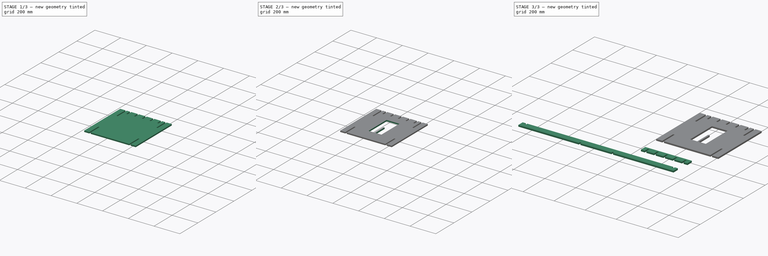
[diagram: build sequence overview — one tinted view per stage of 3, left to right]
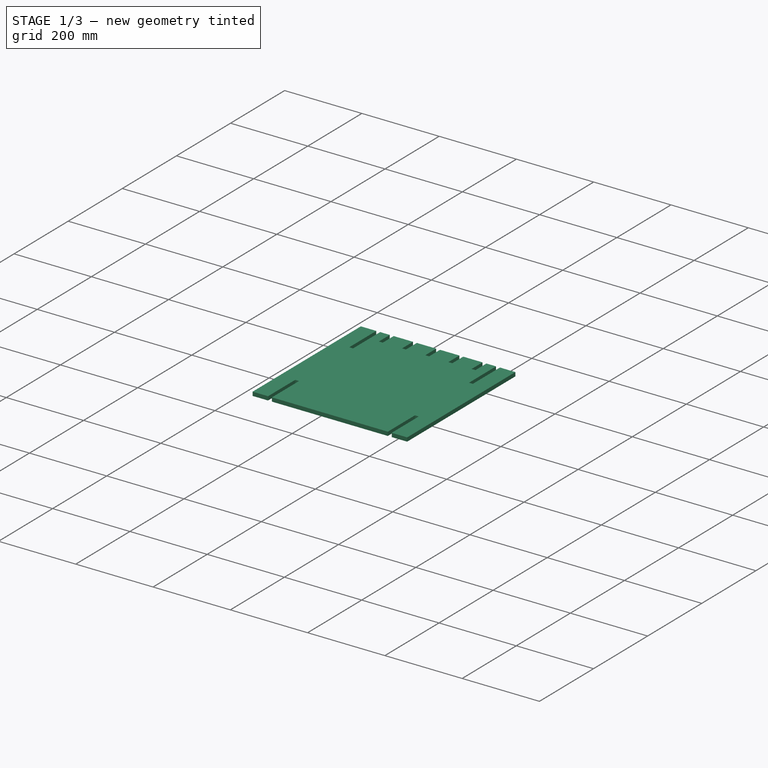
[diagram: stage 1 of 3 — iso view after this stage's code; geometry added in this stage tinted green]
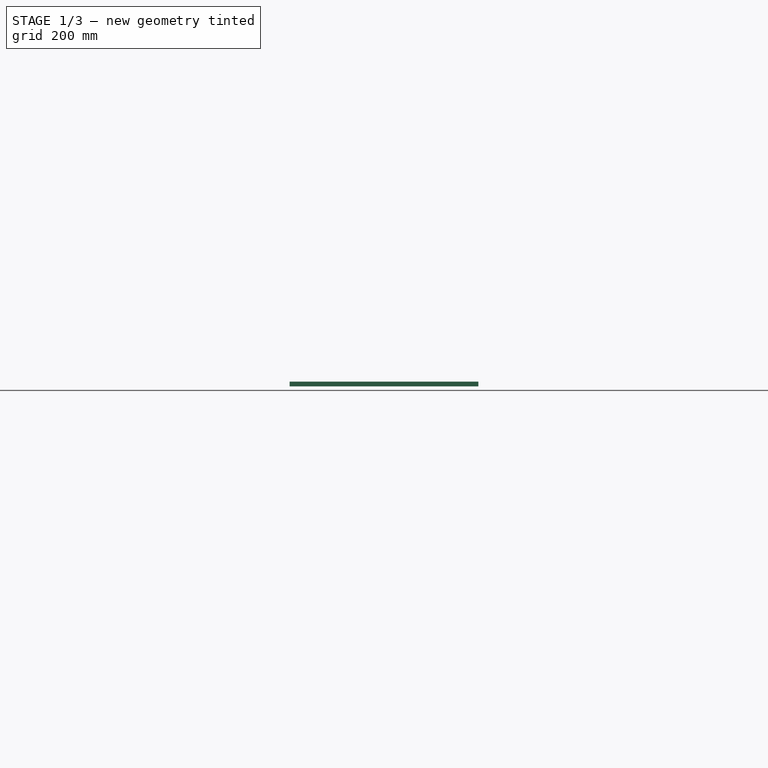
[diagram: stage 1 of 3 — front view after this stage's code; geometry added in this stage tinted green]
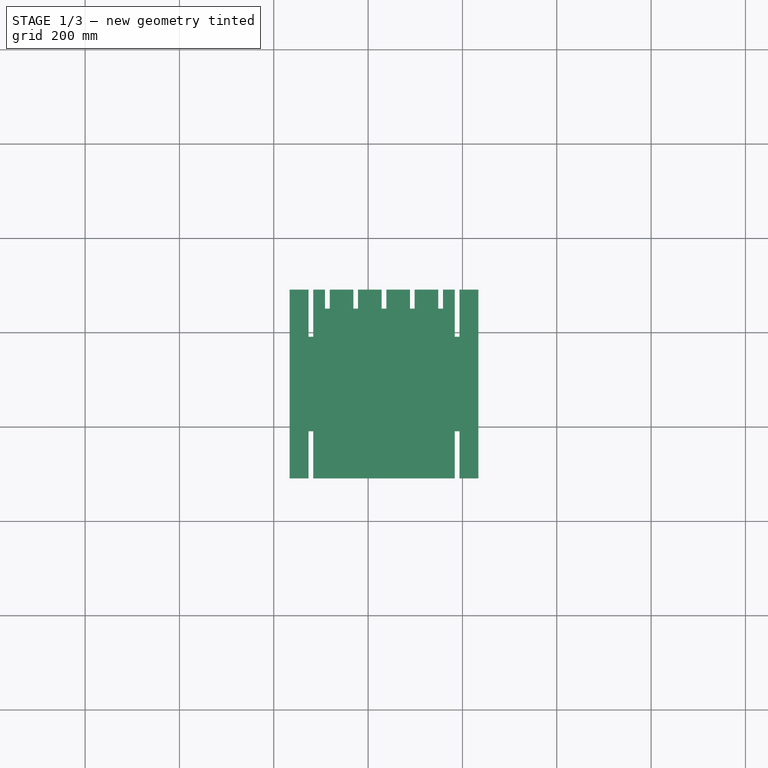
[diagram: stage 1 of 3 — top view after this stage's code; geometry added in this stage tinted green]
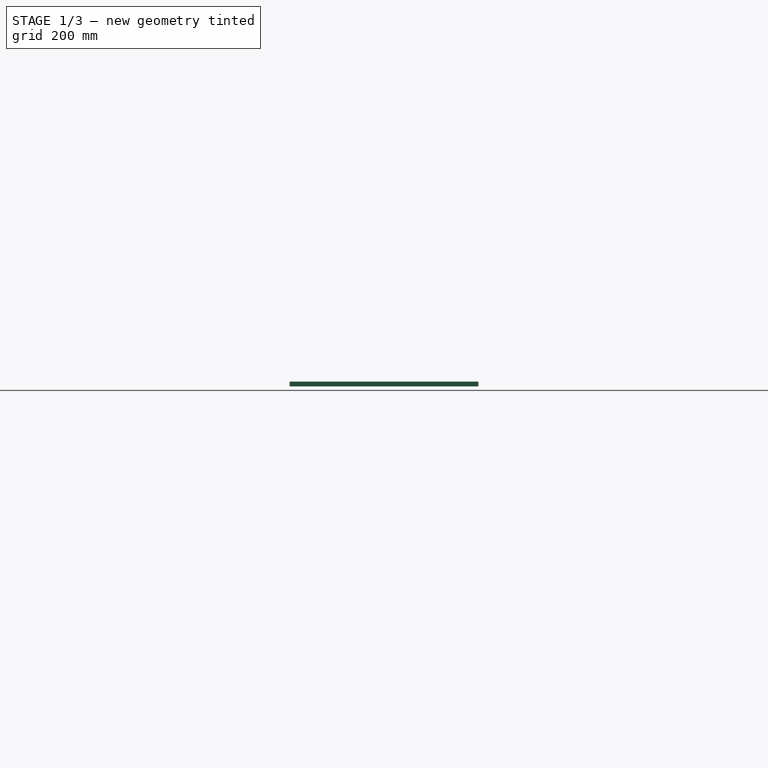
[diagram: stage 1 of 3 — right view after this stage's code; geometry added in this stage tinted green]
FCSTD DOCUMENT  (FreeCAD 0.15R4477 (Git))
Label: moduloMobile3
License: CC-BY 3.0
LicenseURL: http://creativecommons.org/licenses/by/3.0/
objects: Sketcher::SketchObject×5, Part::Part2DObjectPython×3, Part::Extrusion×3, PartDesign::Pad×1, PartDesign::Pocket×1
note: 15 computed .brp shape members not serialized (recipe doc carries the construction recipe); baked Part::Feature solids carry a one-line shape summary decoded from their .brp

FEATURE [Sketcher::SketchObject] Sketch
  sketch-geometry (12):
    g0: LineSegment StartX=0 StartY=600 StartZ=0 EndX=45 EndY=600 EndZ=0
    g1: LineSegment StartX=45 StartY=600 StartZ=0 EndX=45 EndY=500 EndZ=0
    g2: LineSegment StartX=45 StartY=500 StartZ=0 EndX=55 EndY=500 EndZ=0
    g3: LineSegment StartX=55 StartY=500 StartZ=0 EndX=55 EndY=600 EndZ=0
    g4: LineSegment StartX=55 StartY=600 StartZ=0 EndX=100 EndY=600 EndZ=0
    g5: LineSegment StartX=100 StartY=600 StartZ=0 EndX=100 EndY=0 EndZ=0
    g6: LineSegment StartX=100 StartY=0 StartZ=0 EndX=55 EndY=0 EndZ=0
    g7: LineSegment StartX=55 StartY=0 StartZ=0 EndX=55 EndY=100 EndZ=0
    g8: LineSegment StartX=55 StartY=100 StartZ=0 EndX=45 EndY=100 EndZ=0
    g9: LineSegment StartX=45 StartY=100 StartZ=0 EndX=45 EndY=0 EndZ=0
    g10: LineSegment StartX=45 StartY=0 StartZ=0 EndX=0 EndY=0 EndZ=0
    g11: LineSegment StartX=0 StartY=0 StartZ=0 EndX=0 EndY=600 EndZ=0
  constraints (36):
    c: Horizontal(g0)
    c: Coincident(g0,g1)
    c: Vertical(g1)
    c: Coincident(g1,g2)
    c: Horizontal(g2)
    c: Coincident(g2,g3)
    c: Vertical(g3)
    c: Coincident(g3,g4)
    c: Horizontal(g4)
    c: Coincident(g4,g5)
    c: Vertical(g5)
    c: Coincident(g5,g6)
    c: Horizontal(g6)
    c: Coincident(g6,g7)
    c: Vertical(g7)
    c: Coincident(g7,g8)
    c: Horizontal(g8)
    c: Coincident(g8,g9)
    c: Vertical(g9)
    c: Coincident(g9,g10)
    c: Horizontal(g10)
    c: Coincident(g10,g11)
    c: Coincident(g11,g0)
    c: Vertical(g11)
    c: Equal(g2,g8)
    c: Equal(g0,g4)
    c: Equal(g4,g6)
    c: Equal(g6,g10)
    c: Equal(g1,g9)
    c: Equal(g11,g5)
    c: DistanceX(g2) = 10
    c: DistanceX(g0) = 45
    c: DistanceY(g11) = 600
    c: DistanceY(g1) = -100
    c: DistanceY(g0,g4) = 0
    c: Coincident(g10,g-1)
FEATURE [PartDesign::Pad] Pad  label="PadX4"
  Length = 10
  Length2 = 10
  Sketch = -> Sketch
  Type = 0
FEATURE [Sketcher::SketchObject] Sketch002
  ExternalGeometry = -> [Pad]
  Placement = pos=(0,0,10) rot=(0,0,1;0rad)
  Support = -> Pad [Face14]
  sketch-geometry (40):
    g0: LineSegment StartX=433.718 StartY=91.1713 StartZ=0 EndX=433.718 EndY=491.171 EndZ=0
    g1: LineSegment StartX=433.718 StartY=491.171 StartZ=0 EndX=473.718 EndY=491.171 EndZ=0
    g2: LineSegment StartX=473.718 StartY=491.171 StartZ=0 EndX=473.718 EndY=391.171 EndZ=0
    g3: LineSegment StartX=473.718 StartY=391.171 StartZ=0 EndX=483.718 EndY=391.171 EndZ=0
    g4: LineSegment StartX=483.718 StartY=391.171 StartZ=0 EndX=483.718 EndY=491.171 EndZ=0
    g5: LineSegment StartX=483.718 StartY=491.171 StartZ=0 EndX=508.718 EndY=491.171 EndZ=0
    g6: LineSegment StartX=508.718 StartY=491.171 StartZ=0 EndX=508.718 EndY=450.859 EndZ=0
    g7: LineSegment StartX=508.718 StartY=450.859 StartZ=0 EndX=518.718 EndY=450.859 EndZ=0
    g8: LineSegment StartX=518.718 StartY=450.859 StartZ=0 EndX=518.718 EndY=491.171 EndZ=0
    g9: LineSegment StartX=518.718 StartY=491.171 StartZ=0 EndX=568.718 EndY=491.171 EndZ=0
    g10: LineSegment StartX=568.718 StartY=491.171 StartZ=0 EndX=568.718 EndY=450.859 EndZ=0
    g11: LineSegment StartX=568.718 StartY=450.859 StartZ=0 EndX=578.718 EndY=450.859 EndZ=0
    g12: LineSegment StartX=578.718 StartY=450.859 StartZ=0 EndX=578.718 EndY=491.171 EndZ=0
    g13: LineSegment StartX=578.718 StartY=491.171 StartZ=0 EndX=628.718 EndY=491.171 EndZ=0
    g14: LineSegment StartX=628.718 StartY=491.171 StartZ=0 EndX=628.718 EndY=450.859 EndZ=0
    g15: LineSegment StartX=628.718 StartY=450.859 StartZ=0 EndX=638.718 EndY=450.859 EndZ=0
    g16: LineSegment StartX=638.718 StartY=450.859 StartZ=0 EndX=638.718 EndY=491.171 EndZ=0
    g17: LineSegment StartX=638.718 StartY=491.171 StartZ=0 EndX=688.718 EndY=491.171 EndZ=0
    g18: LineSegment StartX=688.718 StartY=491.171 StartZ=0 EndX=688.718 EndY=450.859 EndZ=0
    g19: LineSegment StartX=688.718 StartY=450.859 StartZ=0 EndX=698.718 EndY=450.859 EndZ=0
    g20: LineSegment StartX=698.718 StartY=450.859 StartZ=0 EndX=698.718 EndY=491.171 EndZ=0
    g21: LineSegment StartX=698.718 StartY=491.171 StartZ=0 EndX=748.718 EndY=491.171 EndZ=0
    g22: LineSegment StartX=748.718 StartY=491.171 StartZ=0 EndX=748.718 EndY=450.859 EndZ=0
    g23: LineSegment StartX=748.718 StartY=450.859 StartZ=0 EndX=758.718 EndY=450.859 EndZ=0
    g24: LineSegment StartX=758.718 StartY=450.859 StartZ=0 EndX=758.718 EndY=491.171 EndZ=0
    g25: LineSegment StartX=758.718 StartY=491.171 StartZ=0 EndX=783.718 EndY=491.171 EndZ=0
    g26: LineSegment StartX=783.718 StartY=491.171 StartZ=0 EndX=783.718 EndY=391.171 EndZ=0
    g27: LineSegment StartX=783.718 StartY=391.171 StartZ=0 EndX=793.718 EndY=391.171 EndZ=0
    g28: LineSegment StartX=793.718 StartY=391.171 StartZ=0 EndX=793.718 EndY=491.171 EndZ=0
    g29: LineSegment StartX=793.718 StartY=491.171 StartZ=0 EndX=833.718 EndY=491.171 EndZ=0
    g30: LineSegment StartX=833.718 StartY=491.171 StartZ=0 EndX=833.718 EndY=91.1713 EndZ=0
    g31: LineSegment StartX=833.718 StartY=91.1713 StartZ=0 EndX=793.718 EndY=91.1713 EndZ=0
    g32: LineSegment StartX=793.718 StartY=91.1713 StartZ=0 EndX=793.718 EndY=191.171 EndZ=0
    g33: LineSegment StartX=793.718 StartY=191.171 StartZ=0 EndX=783.718 EndY=191.171 EndZ=0
    g34: LineSegment StartX=783.718 StartY=191.171 StartZ=0 EndX=783.718 EndY=91.1713 EndZ=0
    g35: LineSegment StartX=783.718 StartY=91.1713 StartZ=0 EndX=483.718 EndY=91.1713 EndZ=0
    g36: LineSegment StartX=483.718 StartY=91.1713 StartZ=0 EndX=483.718 EndY=191.171 EndZ=0
    g37: LineSegment StartX=483.718 StartY=191.171 StartZ=0 EndX=473.718 EndY=191.171 EndZ=0
    g38: LineSegment StartX=473.718 StartY=191.171 StartZ=0 EndX=473.718 EndY=91.1713 EndZ=0
    g39: LineSegment StartX=473.718 StartY=91.1713 StartZ=0 EndX=433.718 EndY=91.1713 EndZ=0
  constraints (117):
    c: Vertical(g0)
    c: Coincident(g0,g1)
    c: Horizontal(g1)
    c: Coincident(g1,g2)
    c: Vertical(g2)
    c: Coincident(g2,g3)
    c: Coincident(g3,g4)
    c: Coincident(g4,g5)
    c: Horizontal(g5)
    c: Coincident(g5,g6)
    c: Vertical(g6)
    c: Coincident(g6,g7)
    c: Coincident(g7,g8)
    c: Vertical(g8)
    c: Coincident(g8,g9)
    c: Horizontal(g9)
    c: Coincident(g9,g10)
    c: Vertical(g10)
    c: Coincident(g10,g11)
    c: Horizontal(g11)
    c: Coincident(g11,g12)
    c: Vertical(g12)
    c: Coincident(g12,g13)
    c: Horizontal(g13)
    c: Coincident(g13,g14)
    c: Vertical(g14)
    c: Coincident(g14,g15)
    c: Coincident(g15,g16)
    c: Coincident(g16,g17)
    c: Horizontal(g17)
    c: Coincident(g17,g18)
    c: Vertical(g18)
    c: Coincident(g18,g19)
    c: Horizontal(g19)
    c: Coincident(g19,g20)
    c: Vertical(g20)
    c: Coincident(g20,g21)
    c: Horizontal(g21)
    c: Coincident(g21,g22)
    c: Vertical(g22)
    c: Coincident(g22,g23)
    c: Horizontal(g23)
    c: Coincident(g23,g24)
    c: Vertical(g24)
    c: Coincident(g24,g25)
    c: Horizontal(g25)
    c: Coincident(g25,g26)
    c: Vertical(g26)
    c: Coincident(g26,g27)
    c: Horizontal(g27)
    c: Coincident(g27,g28)
    c: Vertical(g28)
    c: Coincident(g28,g29)
    c: Horizontal(g29)
    c: Coincident(g29,g30)
    c: Vertical(g30)
    c: Coincident(g30,g31)
    c: Horizontal(g31)
    c: Coincident(g31,g32)
    c: Vertical(g32)
    c: Coincident(g32,g33)
    c: Horizontal(g33)
    c: Coincident(g33,g34)
    c: Vertical(g34)
    c: Coincident(g34,g35)
    c: Horizontal(g35)
    c: Coincident(g35,g36)
    c: Vertical(g36)
    c: Coincident(g36,g37)
    c: Coincident(g37,g38)
    c: Vertical(g38)
    c: Coincident(g38,g39)
    c: Coincident(g39,g0)
    c: Horizontal(g39)
    c: Equal(g38,g-3)
    c: Horizontal(g37)
    c: Equal(g37,g-4)
    c: Horizontal(g3)
    c: Horizontal(g7)
    c: Horizontal(g15)
    c: Equal(g38,g36)
    c: Equal(g36,g2)
    c: Equal(g2,g4)
    c: Equal(g4,g34)
    c: Equal(g34,g32)
    c: Equal(g32,g26)
    c: Equal(g26,g28)
    c: Equal(g0,g30)
    c: Vertical(g4)
    c: Equal(g37,g3)
    c: Equal(g3,g27)
    c: Equal(g27,g33)
    c: Equal(g33,g7)
    c: Equal(g7,g11)
    c: Equal(g11,g15)
    c: Equal(g15,g19)
    c: Equal(g19,g23)
    c: Equal(g5,g25)
    c: Equal(g9,g13)
    c: Equal(g13,g17)
    c: Equal(g17,g21)
    c: Equal(g6,g8)
    c: Equal(g8,g10)
    c: Equal(g10,g12)
    c: Equal(g12,g14)
    c: Equal(g14,g16)
    c: Equal(g16,g18)
    c: Equal(g18,g20)
    c: Equal(g20,g22)
    c: Equal(g22,g24)
    c: DistanceX(g0,g30) = 400
    c: DistanceY(g0,g0) = -400
    c: DistanceX(g1,g0) = -40
    c: Equal(g1,g29)
    c: Equal(g29,g31)
    c: Equal(g31,g39)
    c: DistanceX(g9) = 50
FEATURE [Part::Part2DObjectPython] DWire001  # Draft 2D object (typed FeaturePython)
  Base = -> Sketch002
  ChamferSize = 0
  Closed = true
  End = (379.172,90.8572,10)
  FilletRadius = 0
  Length = 3002.2
  MakeFace = true
  Points = (40) [(339.172,90.8572,10),(339.172,490.857,10),(379.172,490.857,10),(379.172,390.857,10),(389.172,390.857,10),(389.172,490.857,10),(454.729,490.857,10),+33 more]
  Start = (339.172,90.8572,10)
FEATURE [Part::Extrusion] Extrude001  label="ExtrudeX2"
  Base = -> DWire001
  Dir = (0,0,10)
  Solid = false
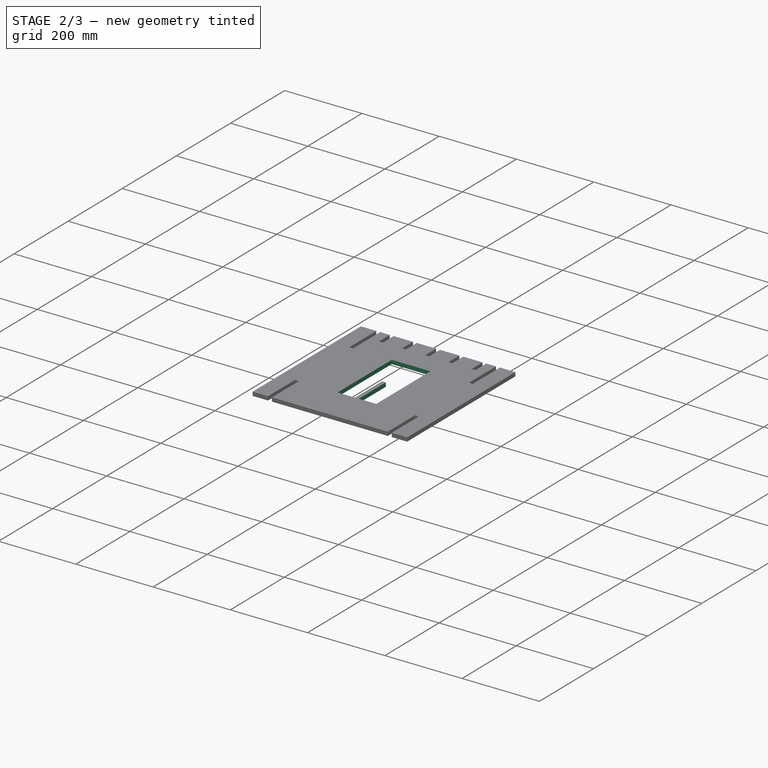
[diagram: stage 2 of 3 — iso view after this stage's code; geometry added in this stage tinted green]
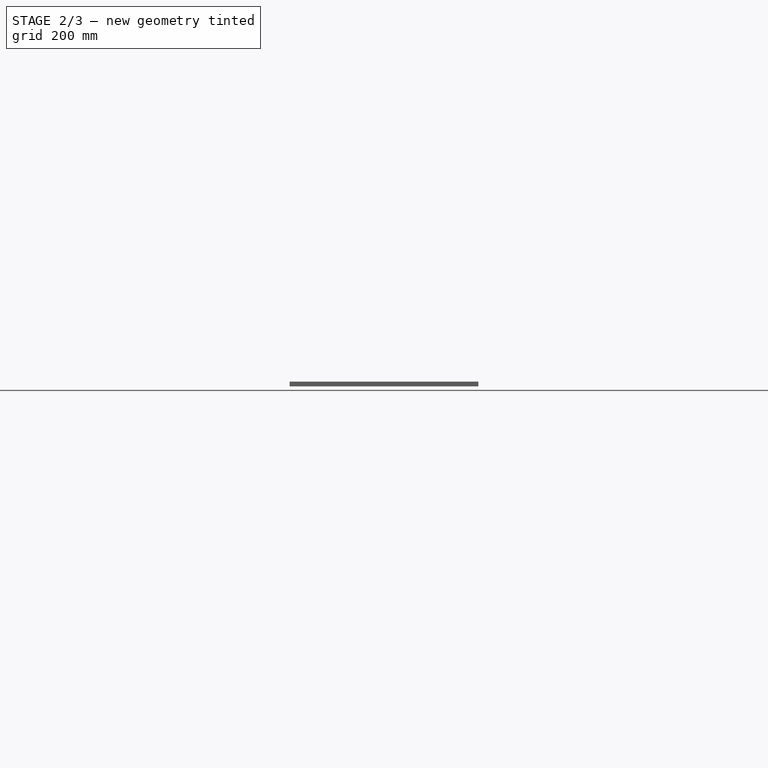
[diagram: stage 2 of 3 — front view after this stage's code; geometry added in this stage tinted green]
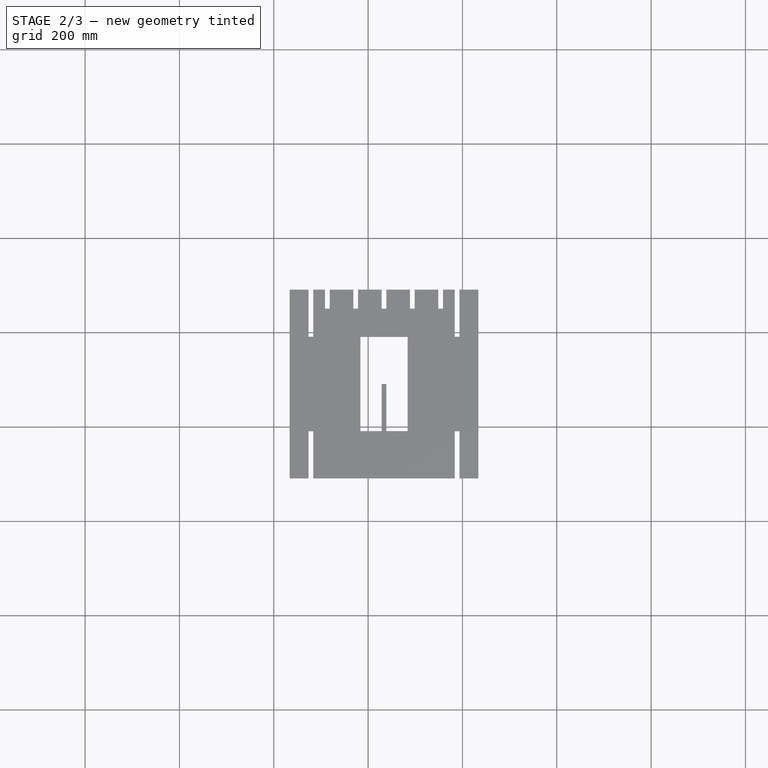
[diagram: stage 2 of 3 — top view after this stage's code; geometry added in this stage tinted green]
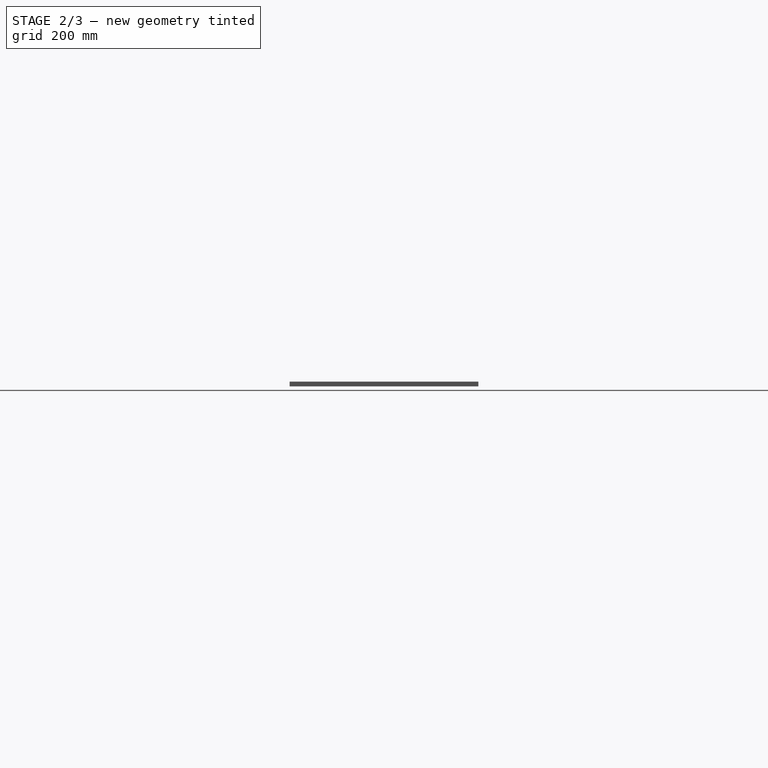
[diagram: stage 2 of 3 — right view after this stage's code; geometry added in this stage tinted green]
FEATURE [Sketcher::SketchObject] Sketch005
  ExternalGeometry = -> [Extrude001]
  Placement = pos=(0,0,20) rot=(0,0,1;0rad)
  Support = -> Extrude001 [Face42]
  sketch-geometry (17):
    g0: LineSegment StartX=683.718 StartY=391.171 StartZ=0 EndX=683.718 EndY=191.171 EndZ=0
    g1: LineSegment StartX=683.718 StartY=191.171 StartZ=0 EndX=638.718 EndY=191.171 EndZ=0
    g2: LineSegment StartX=638.718 StartY=191.171 StartZ=0 EndX=638.718 EndY=291.171 EndZ=0
    g3: LineSegment StartX=638.718 StartY=291.171 StartZ=0 EndX=628.718 EndY=291.171 EndZ=0
    g4: LineSegment StartX=628.718 StartY=291.171 StartZ=0 EndX=628.718 EndY=191.171 EndZ=0
    g5: LineSegment StartX=628.718 StartY=191.171 StartZ=0 EndX=583.718 EndY=191.171 EndZ=0
    g6: GeomPoint [constr] X=633.718 Y=391.171 Z=0
    g7: LineSegment StartX=683.718 StartY=391.171 StartZ=0 EndX=633.718 EndY=391.171 EndZ=0
    g8: LineSegment StartX=633.718 StartY=391.171 StartZ=0 EndX=583.718 EndY=391.171 EndZ=0
    g9: LineSegment StartX=583.718 StartY=191.171 StartZ=0 EndX=583.718 EndY=291.171 EndZ=0
    g10: LineSegment StartX=583.718 StartY=291.171 StartZ=0 EndX=583.718 EndY=391.171 EndZ=0
    g11: LineSegment [constr] StartX=433.718 StartY=491.171 StartZ=0 EndX=433.718 EndY=291.171 EndZ=0
    g12: LineSegment [constr] StartX=433.718 StartY=291.171 StartZ=0 EndX=433.718 EndY=91.1713 EndZ=0
    g13: LineSegment [constr] StartX=433.718 StartY=291.171 StartZ=0 EndX=489.589 EndY=291.171 EndZ=0
    g14: LineSegment [constr] StartX=483.718 StartY=191.171 StartZ=0 EndX=633.718 EndY=191.171 EndZ=0
    g15: LineSegment [constr] StartX=633.718 StartY=191.171 StartZ=0 EndX=783.718 EndY=191.171 EndZ=0
    g16: LineSegment [constr] StartX=633.718 StartY=191.171 StartZ=0 EndX=633.718 EndY=220.655 EndZ=0
  constraints (46):
    c: Vertical(g0)
    c: Coincident(g0,g1)
    c: Horizontal(g1)
    c: Coincident(g1,g2)
    c: Vertical(g2)
    c: Coincident(g2,g3)
    c: Coincident(g3,g4)
    c: Vertical(g4)
    c: Coincident(g4,g5)
    c: Horizontal(g5)
    c: Horizontal(g3)
    c: Equal(g5,g1)
    c: Equal(g3,g-3)
    c: Equal(g4,g2)
    c: Coincident(g0,g7)
    c: Coincident(g7,g6)
    c: Horizontal(g7)
    c: Coincident(g7,g8)
    c: Horizontal(g8)
    c: Equal(g8,g7)
    c: Coincident(g5,g9)
    c: Vertical(g9)
    c: Coincident(g9,g10)
    c: Vertical(g10)
    c: Coincident(g10,g8)
    c: Equal(g10,g9)
    c: Equal(g10,g9)
    c: Equal(g4,g-8)
    c: DistanceX(g8,g0) = 100
    c: DistanceY(g0) = -200
    c: Coincident(g11,g-6)
    c: Coincident(g11,g12)
    c: Coincident(g12,g-7)
    c: Equal(g12,g11)
    c: Vertical(g11)
    c: Coincident(g13,g11)
    c: Perpendicular(g11,g13)
    c: Symmetric(g8,g5,g13)
    c: Coincident(g14,g-4)
    c: Coincident(g14,g15)
    c: Coincident(g15,g-5)
    c: Equal(g14,g15)
    c: Horizontal(g14)
    c: Coincident(g16,g14)
    c: Vertical(g16)
    c: DistanceX(g6,g16) = 0
FEATURE [PartDesign::Pocket] Pocket
  Length = 10
  Sketch = -> Sketch005
  Type = 0
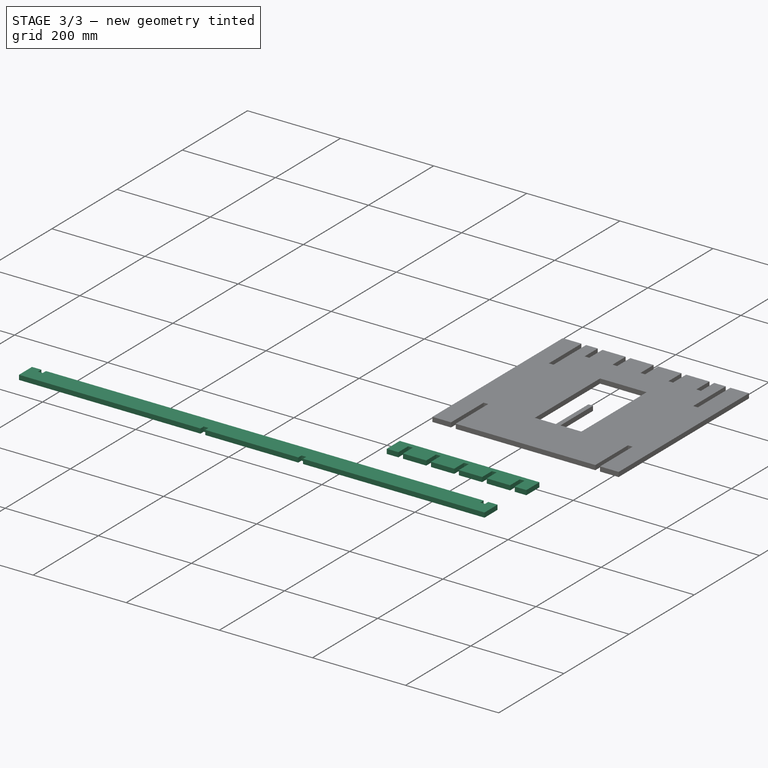
[diagram: stage 3 of 3 — iso view after this stage's code; geometry added in this stage tinted green]
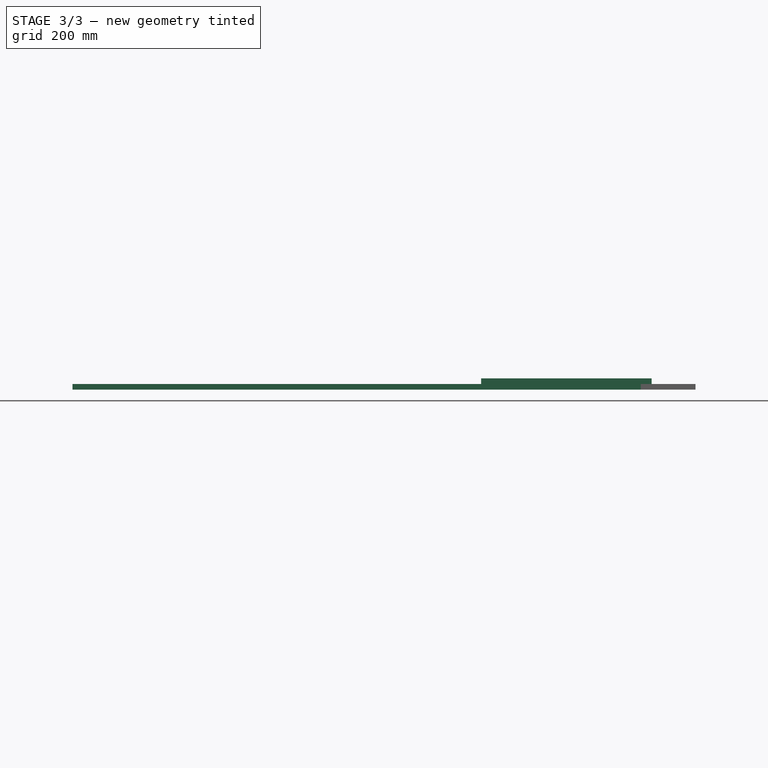
[diagram: stage 3 of 3 — front view after this stage's code; geometry added in this stage tinted green]
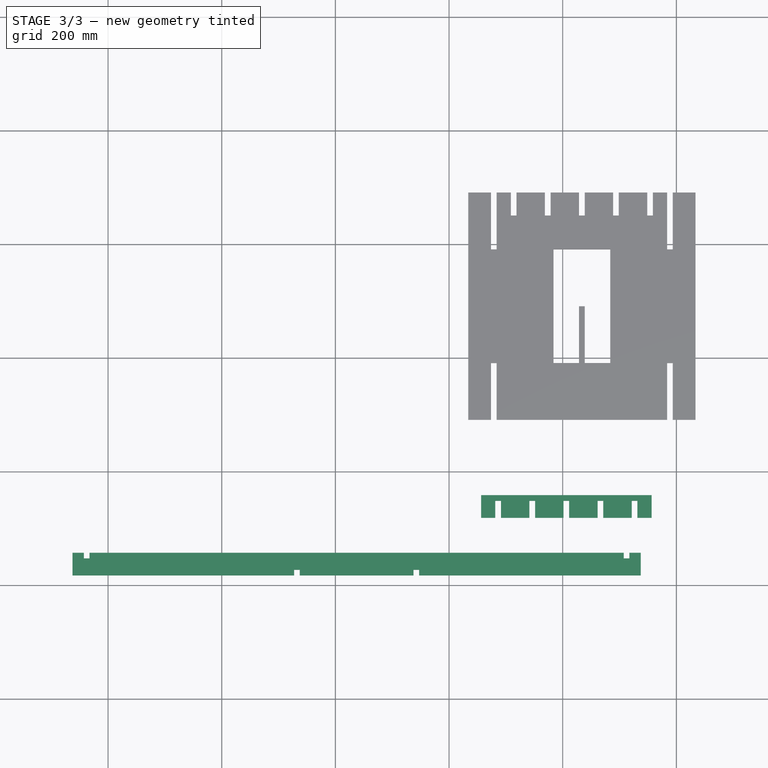
[diagram: stage 3 of 3 — top view after this stage's code; geometry added in this stage tinted green]
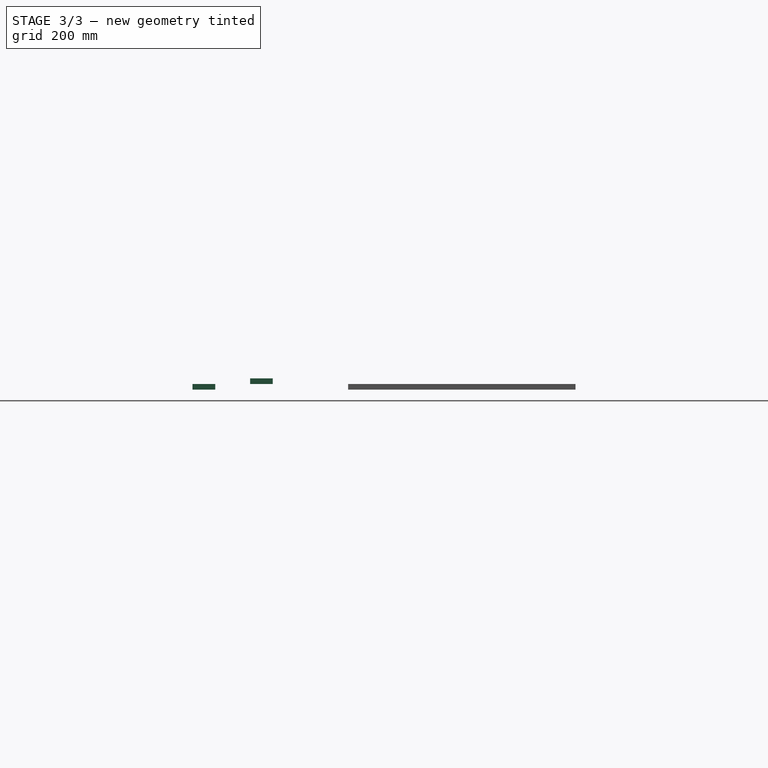
[diagram: stage 3 of 3 — right view after this stage's code; geometry added in this stage tinted green]
FEATURE [Sketcher::SketchObject] Sketch003
  ExternalGeometry = -> [Pad]
  Placement = pos=(0,0,10) rot=(0,0,1;0rad)
  Support = -> Pad [Face14]
  sketch-geometry (20):
    g0: LineSegment StartX=-262.638 StartY=-182.689 StartZ=0 EndX=-262.638 EndY=-142.689 EndZ=0
    g1: LineSegment StartX=-262.638 StartY=-142.689 StartZ=0 EndX=-242.638 EndY=-142.689 EndZ=0
    g2: LineSegment StartX=-242.638 StartY=-142.689 StartZ=0 EndX=-242.638 EndY=-152.689 EndZ=0
    g3: LineSegment StartX=-242.638 StartY=-152.689 StartZ=0 EndX=-232.638 EndY=-152.689 EndZ=0
    g4: LineSegment StartX=-232.638 StartY=-152.689 StartZ=0 EndX=-232.638 EndY=-142.689 EndZ=0
    g5: LineSegment StartX=707.362 StartY=-142.689 StartZ=0 EndX=707.362 EndY=-152.689 EndZ=0
    g6: LineSegment StartX=737.362 StartY=-142.689 StartZ=0 EndX=737.362 EndY=-182.689 EndZ=0
    g7: LineSegment StartX=707.362 StartY=-152.689 StartZ=0 EndX=717.362 EndY=-152.689 EndZ=0
    g8: LineSegment StartX=717.362 StartY=-152.689 StartZ=0 EndX=717.362 EndY=-142.689 EndZ=0
    g9: LineSegment StartX=717.362 StartY=-142.689 StartZ=0 EndX=737.362 EndY=-142.689 EndZ=0
    g10: LineSegment StartX=-262.638 StartY=-182.689 StartZ=0 EndX=127.362 EndY=-182.689 EndZ=0
    g11: LineSegment StartX=127.362 StartY=-182.689 StartZ=0 EndX=127.362 EndY=-172.689 EndZ=0
    g12: LineSegment StartX=127.362 StartY=-172.689 StartZ=0 EndX=137.362 EndY=-172.689 EndZ=0
    g13: LineSegment StartX=137.362 StartY=-172.689 StartZ=0 EndX=137.362 EndY=-182.689 EndZ=0
    g14: LineSegment StartX=137.362 StartY=-182.689 StartZ=0 EndX=337.362 EndY=-182.689 EndZ=0
    g15: LineSegment StartX=337.362 StartY=-182.689 StartZ=0 EndX=337.362 EndY=-172.689 EndZ=0
    g16: LineSegment StartX=337.362 StartY=-172.689 StartZ=0 EndX=347.362 EndY=-172.689 EndZ=0
    g17: LineSegment StartX=347.362 StartY=-172.689 StartZ=0 EndX=347.362 EndY=-182.689 EndZ=0
    g18: LineSegment StartX=347.362 StartY=-182.689 StartZ=0 EndX=737.362 EndY=-182.689 EndZ=0
    g19: LineSegment StartX=-232.638 StartY=-142.689 StartZ=0 EndX=707.362 EndY=-142.689 EndZ=0
  constraints (58):
    c: Coincident(g0,g1)
    c: Coincident(g1,g2)
    c: Vertical(g2)
    c: Coincident(g2,g3)
    c: Horizontal(g3)
    c: Coincident(g3,g4)
    c: Vertical(g6)
    c: Equal(g3,g-4)
    c: Vertical(g4)
    c: Vertical(g5)
    c: Horizontal(g1)
    c: Vertical(g0)
    c: Equal(g3,g2)
    c: Equal(g2,g4)
    c: Equal(g4,g5)
    c: DistanceX(g1) = 20
    c: DistanceY(g0) = 40
    c: DistanceX(g0,g6) = 1000
    c: Coincident(g5,g7)
    c: Horizontal(g7)
    c: Coincident(g7,g8)
    c: Vertical(g8)
    c: Coincident(g8,g9)
    c: Coincident(g9,g6)
    c: Horizontal(g9)
    c: Equal(g9,g1)
    c: Equal(g5,g7)
    c: Equal(g7,g8)
    c: Coincident(g0,g10)
    c: Horizontal(g10)
    c: Coincident(g10,g11)
    c: Vertical(g11)
    c: Coincident(g11,g12)
    c: Horizontal(g12)
    c: Coincident(g12,g13)
    c: Vertical(g13)
    c: Coincident(g13,g14)
    c: Horizontal(g14)
    c: Coincident(g14,g15)
    c: Vertical(g15)
    c: Coincident(g15,g16)
    c: Horizontal(g16)
    c: Coincident(g16,g17)
    c: Coincident(g17,g18)
    c: Horizontal(g18)
    c: Coincident(g18,g6)
    c: Equal(g0,g6)
    c: Vertical(g17)
    c: DistanceX(g14) = 200
    c: Equal(g11,g12)
    c: Equal(g12,g13)
    c: Equal(g13,g15)
    c: Equal(g15,g16)
    c: Equal(g16,g17)
    c: Equal(g11,g3)
    c: Equal(g10,g18)
    c: Coincident(g19,g4)
    c: Coincident(g19,g5)
FEATURE [Part::Part2DObjectPython] DWire002  # Draft 2D object (typed FeaturePython)
  Base = -> Sketch003
  ChamferSize = 0
  Closed = true
  End = (737.462,-185.333,10)
  FilletRadius = 0
  Length = 2160
  MakeFace = true
  Points = (20) [(-262.538,-185.333,10),(-262.538,-145.333,10),(-242.538,-145.333,10),(-242.538,-155.333,10),(-232.538,-155.333,10),(-232.538,-145.333,10),+14 more]
  Start = (-262.538,-185.333,10)
FEATURE [Part::Extrusion] Extrude002  label="ExtrudeX5"
  Base = -> DWire002
  Dir = (0,0,10)
  Solid = false
FEATURE [Sketcher::SketchObject] Sketch004
  ExternalGeometry = -> [Extrude001]
  Placement = pos=(0,0,20) rot=(0,0,1;0rad)
  Support = -> Extrude001 [Face42]
  sketch-geometry (30):
    g0: LineSegment StartX=456.393 StartY=-81.4293 StartZ=0 EndX=456.393 EndY=-41.4293 EndZ=0
    g1: LineSegment StartX=456.393 StartY=-41.4293 StartZ=0 EndX=756.393 EndY=-41.4293 EndZ=0
    g2: LineSegment StartX=756.393 StartY=-81.4293 StartZ=0 EndX=731.393 EndY=-81.4293 EndZ=0
    g3: LineSegment StartX=731.393 StartY=-81.4293 StartZ=0 EndX=731.393 EndY=-51.4293 EndZ=0
    g4: LineSegment StartX=731.393 StartY=-51.4293 StartZ=0 EndX=721.393 EndY=-51.4293 EndZ=0
    g5: LineSegment StartX=721.393 StartY=-51.4293 StartZ=0 EndX=721.393 EndY=-81.4293 EndZ=0
    g6: LineSegment StartX=721.393 StartY=-81.4293 StartZ=0 EndX=671.393 EndY=-81.4293 EndZ=0
    g7: LineSegment StartX=671.393 StartY=-81.4293 StartZ=0 EndX=671.393 EndY=-51.4293 EndZ=0
    g8: LineSegment StartX=671.393 StartY=-51.4293 StartZ=0 EndX=661.393 EndY=-51.4293 EndZ=0
    g9: LineSegment StartX=661.393 StartY=-51.4293 StartZ=0 EndX=661.393 EndY=-81.4293 EndZ=0
    g10: LineSegment StartX=661.393 StartY=-81.4293 StartZ=0 EndX=611.393 EndY=-81.4293 EndZ=0
    g11: LineSegment StartX=611.393 StartY=-81.4293 StartZ=0 EndX=611.393 EndY=-51.4293 EndZ=0
    g12: LineSegment StartX=611.393 StartY=-51.4293 StartZ=0 EndX=601.393 EndY=-51.4293 EndZ=0
    g13: LineSegment StartX=601.393 StartY=-51.4293 StartZ=0 EndX=601.393 EndY=-81.4293 EndZ=0
    g14: LineSegment StartX=601.393 StartY=-81.4293 StartZ=0 EndX=551.393 EndY=-81.4293 EndZ=0
    g15: LineSegment StartX=551.393 StartY=-81.4293 StartZ=0 EndX=551.393 EndY=-51.4293 EndZ=0
    g16: LineSegment StartX=551.393 StartY=-51.4293 StartZ=0 EndX=541.393 EndY=-51.4293 EndZ=0
    g17: LineSegment StartX=541.393 StartY=-51.4293 StartZ=0 EndX=541.393 EndY=-81.4293 EndZ=0
    g18: LineSegment StartX=541.393 StartY=-81.4293 StartZ=0 EndX=491.393 EndY=-81.4293 EndZ=0
    g19: LineSegment StartX=491.393 StartY=-81.4293 StartZ=0 EndX=491.393 EndY=-51.4293 EndZ=0
    g20: LineSegment StartX=491.393 StartY=-51.4293 StartZ=0 EndX=481.393 EndY=-51.4293 EndZ=0
    g21: LineSegment StartX=481.393 StartY=-51.4293 StartZ=0 EndX=481.393 EndY=-81.4293 EndZ=0
    g22: LineSegment StartX=481.393 StartY=-81.4293 StartZ=0 EndX=456.393 EndY=-81.4293 EndZ=0
    g23: LineSegment [constr] StartX=481.393 StartY=-81.4293 StartZ=0 EndX=491.393 EndY=-81.4293 EndZ=0
    g24: LineSegment [constr] StartX=541.393 StartY=-81.4293 StartZ=0 EndX=551.393 EndY=-81.4293 EndZ=0
    g25: LineSegment [constr] StartX=601.393 StartY=-81.4293 StartZ=0 EndX=611.393 EndY=-81.4293 EndZ=0
    g26: LineSegment [constr] StartX=671.393 StartY=-81.4293 StartZ=0 EndX=661.393 EndY=-81.4293 EndZ=0
    g27: LineSegment [constr] StartX=721.393 StartY=-81.4293 StartZ=0 EndX=731.393 EndY=-81.4293 EndZ=0
    g28: LineSegment StartX=756.393 StartY=-41.4293 StartZ=0 EndX=756.393 EndY=-51.4293 EndZ=0
    g29: LineSegment StartX=756.393 StartY=-51.4293 StartZ=0 EndX=756.393 EndY=-81.4293 EndZ=0
  constraints (88):
    c: Vertical(g0)
    c: Coincident(g0,g1)
    c: Horizontal(g1)
    c: Horizontal(g2)
    c: Coincident(g2,g3)
    c: Vertical(g3)
    c: Coincident(g3,g4)
    c: Coincident(g4,g5)
    c: Vertical(g5)
    c: Coincident(g5,g6)
    c: Coincident(g6,g7)
    c: Coincident(g7,g8)
    c: Coincident(g8,g9)
    c: Coincident(g9,g10)
    c: Horizontal(g10)
    c: Coincident(g10,g11)
    c: Coincident(g11,g12)
    c: Horizontal(g12)
    c: Coincident(g12,g13)
    c: Vertical(g13)
    c: Coincident(g13,g14)
    c: Horizontal(g14)
    c: Coincident(g14,g15)
    c: Coincident(g15,g16)
    c: Horizontal(g16)
    c: Coincident(g16,g17)
    c: Vertical(g17)
    c: Coincident(g17,g18)
    c: Horizontal(g18)
    c: Coincident(g18,g19)
    c: Coincident(g19,g20)
    c: Horizontal(g20)
    c: Coincident(g20,g21)
    c: Coincident(g21,g22)
    c: Coincident(g22,g0)
    c: DistanceY(g0) = 40
    c: Horizontal(g6)
    c: Horizontal(g8)
    c: Horizontal(g4)
    c: Horizontal(g22)
    c: Vertical(g11)
    c: Vertical(g9)
    c: Vertical(g7)
    c: Coincident(g23,g21)
    c: Coincident(g23,g18)
    c: Coincident(g24,g17)
    c: Coincident(g24,g14)
    c: Horizontal(g24)
    c: Coincident(g25,g13)
    c: Coincident(g25,g10)
    c: Coincident(g26,g6)
    c: Coincident(g26,g9)
    c: Coincident(g27,g5)
    c: Coincident(g27,g2)
    c: Horizontal(g26)
    c: Horizontal(g27)
    c: Horizontal(g25)
    c: Horizontal(g23)
    c: Equal(g18,g14)
    c: Equal(g14,g10)
    c: Equal(g10,g6)
    c: Equal(g6,g-3)
    c: Equal(g20,g16)
    c: Equal(g16,g12)
    c: Equal(g12,g8)
    c: Equal(g8,g4)
    c: Equal(g4,g-4)
    c: Vertical(g15)
    c: Vertical(g19)
    c: Vertical(g21)
    c: Equal(g-5,g22)
    c: Equal(g22,g2)
    c: Equal(g21,g19)
    c: Equal(g19,g17)
    c: Equal(g17,g15)
    c: Equal(g15,g13)
    c: Equal(g13,g11)
    c: Equal(g11,g9)
    c: Equal(g9,g7)
    c: Equal(g7,g5)
    c: Equal(g5,g3)
    c: Coincident(g28,g1)
    c: Vertical(g28)
    c: Coincident(g29,g28)
    c: Vertical(g29)
    c: Equal(g28,g-4)
    c: Equal(g3,g29)
    c: Coincident(g29,g2)
FEATURE [Part::Part2DObjectPython] DWire003  # Draft 2D object (typed FeaturePython)
  Base = -> Sketch004
  ChamferSize = 0
  Closed = true
  End = (475.669,-81.3788,20)
  FilletRadius = 0
  Length = 980
  MakeFace = true
  Points = (25) [(450.669,-81.3788,20),(450.669,-41.3788,20),(750.669,-41.3788,20),(750.669,-51.3788,20),(750.669,-81.3788,20),(725.669,-81.3788,20),+19 more]
  Start = (450.669,-81.3788,20)
FEATURE [Part::Extrusion] Extrude003
  Base = -> DWire003
  Dir = (0,0,10)
  Solid = false
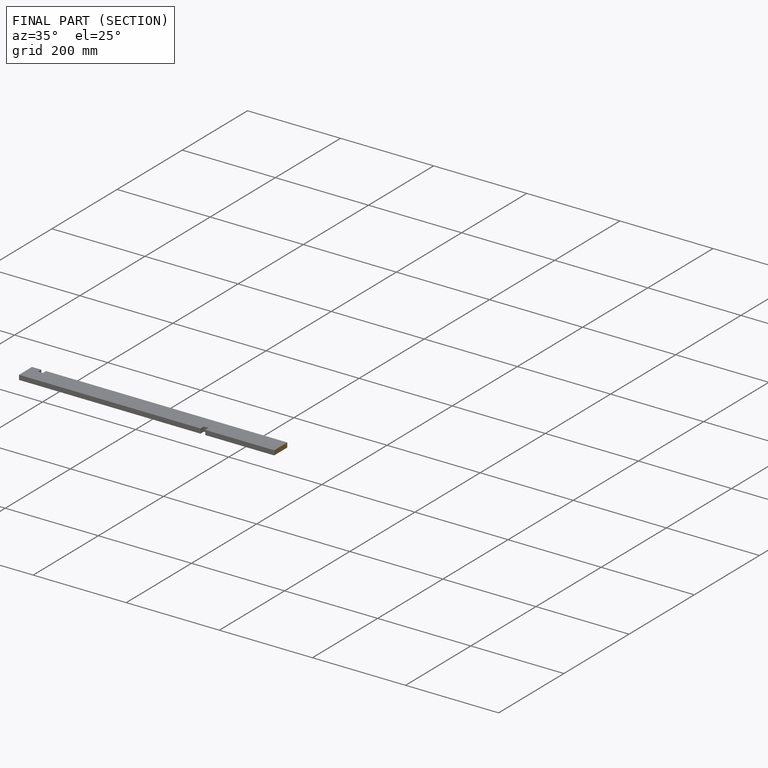
[diagram: finished part — half-section view (interior)]
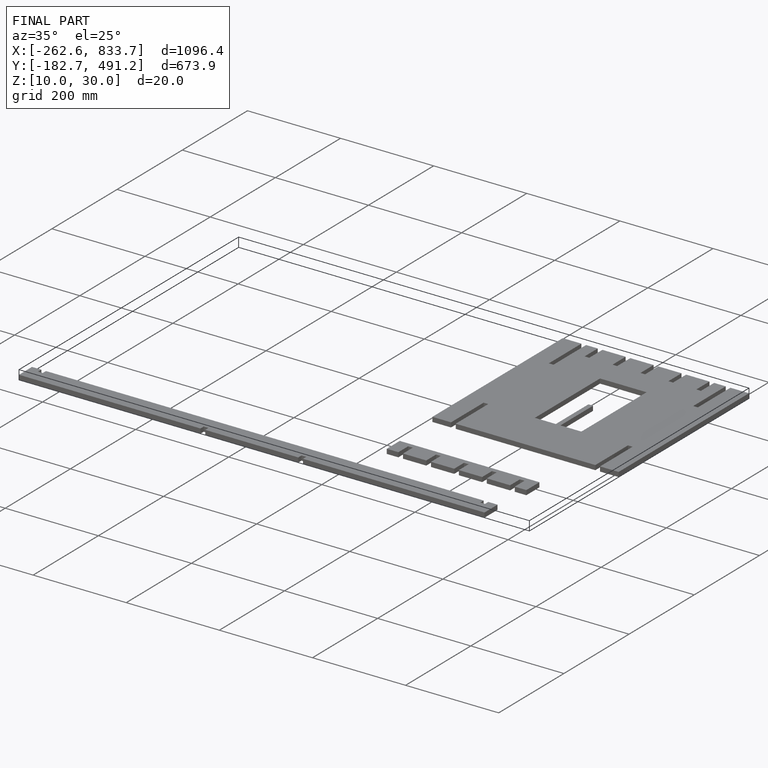
[diagram: finished part — iso view with bounding-box wireframe]
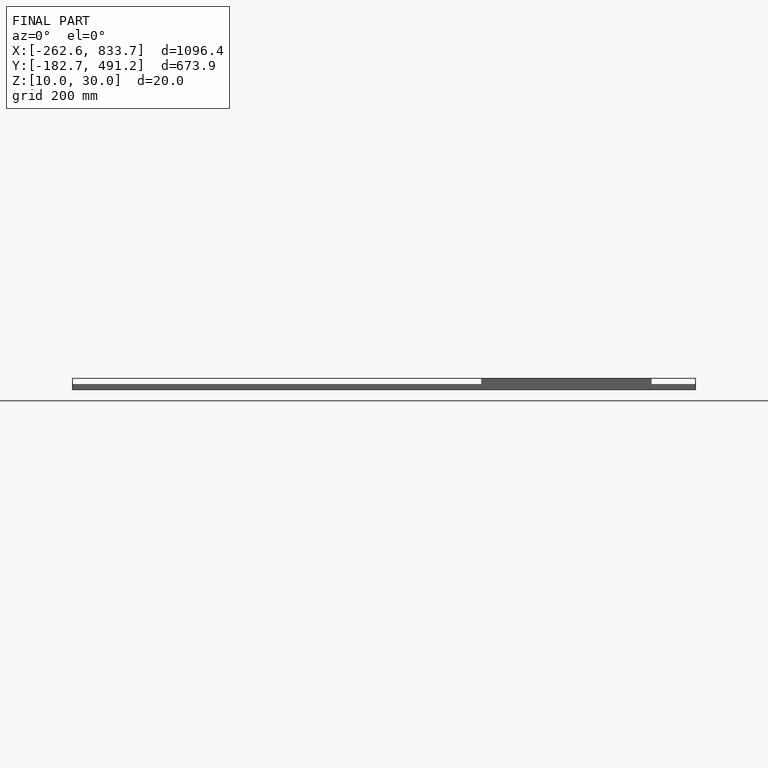
[diagram: finished part — front view with bounding-box wireframe]
